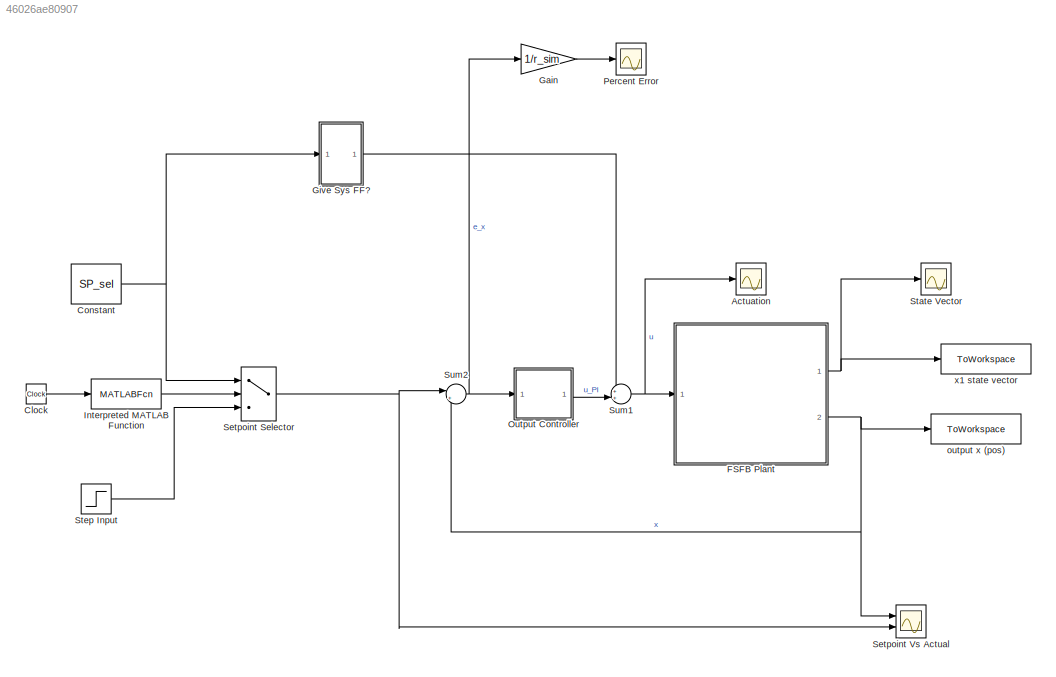
MODEL slx_46026ae80907
KIND model
CONFIG AbsTol = auto
CONFIG EnableMultiTasking = off
CONFIG FixedStep = auto
CONFIG MaxStep = auto
CONFIG MinStep = auto
CONFIG RelTol = 1e-3
CONFIG SampleTimeConstraint = Unconstrained
CONFIG SolverName = VariableStepAuto
CONFIG StartTime = 0.0
CONFIG StopTime = t_sim
BLOCK [Scope] Actuation
  Floating = off
  NumInputPorts = 1
  Ports = [1]
  ScopeSpecificationString = Simulink.scopes.TimeScopeBlockCfg('CurrentConfiguration', extmgr.ConfigurationSet(extmgr.Configuration('Core','General UI',true),extmgr.Configuration('Core','Source UI',true),extmgr.Configuration('Sources','WiredSimulink',true),extmgr.Configuration('Visuals','Time Domain',true,'SerializedDisplays',{struct('MinYLimReal','-5303321014852161474422123516728042070513849380818668761239330306991849472.000...<+2084ch>
BLOCK [Clock] Clock
BLOCK [Constant] Constant
  Value = SP_sel
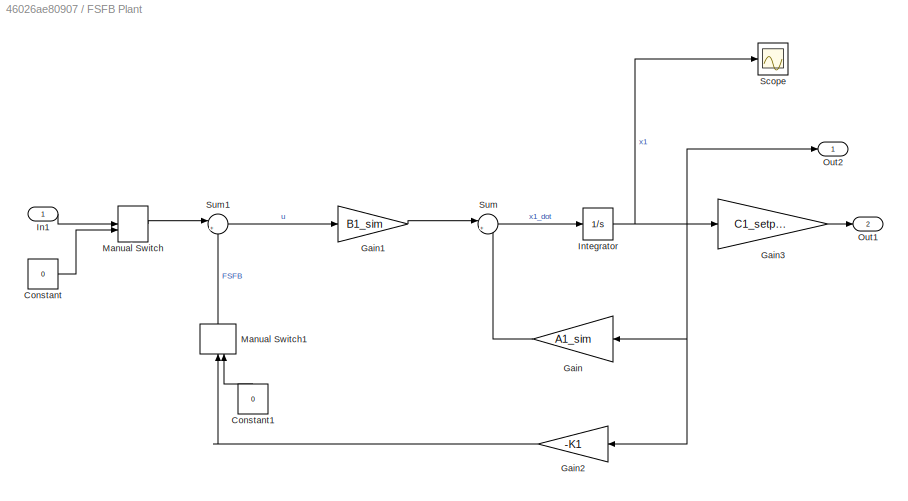
BLOCK [SubSystem] FSFB Plant
  Ports = [1, 2]
  RequestExecContextInheritance = off
BLOCK [Constant] FSFB Plant/Constant
  Value = 0
BLOCK [Constant] FSFB Plant/Constant1
  NameLocation = right
  Value = 0
BLOCK [Gain] FSFB Plant/Gain
  Gain = A1_sim
  Multiplication = Matrix(K*u)
  NameLocation = top
BLOCK [Gain] FSFB Plant/Gain1
  Gain = B1_sim
  Multiplication = Matrix(K*u)
BLOCK [Gain] FSFB Plant/Gain2
  Gain = -K1
  Multiplication = Matrix(K*u)
  NameLocation = top
BLOCK [Gain] FSFB Plant/Gain3
  Gain = C1_setp_ctrl
  Multiplication = Matrix(K*u)
BLOCK [Inport] FSFB Plant/In1
BLOCK [Integrator] FSFB Plant/Integrator
  InitialCondition = x1_0
  Ports = [1, 1]
BLOCK [ManualSwitch] FSFB Plant/Manual Switch
BLOCK [ManualSwitch] FSFB Plant/Manual Switch1
  NameLocation = right
BLOCK [Outport] FSFB Plant/Out1
  Port = 2
BLOCK [Outport] FSFB Plant/Out2
BLOCK [Scope] FSFB Plant/Scope
  Floating = off
  NumInputPorts = 1
  Ports = [1]
  ScopeSpecificationString = Simulink.scopes.TimeScopeBlockCfg('CurrentConfiguration', extmgr.ConfigurationSet(extmgr.Configuration('Core','General UI',true),extmgr.Configuration('Core','Source UI',true),extmgr.Configuration('Sources','WiredSimulink',true,'DataLoggingVariableName','ScopeData4'),extmgr.Configuration('Visuals','Time Domain',true,'SerializedDisplays',{struct('MinYLimReal','-99.35489','MaxYLimReal','123.87514','Y...<+1468ch>
BLOCK [Sum] FSFB Plant/Sum
  Inputs = |++
  Ports = [2, 1]
BLOCK [Sum] FSFB Plant/Sum1
  Inputs = |++
  Ports = [2, 1]
BLOCK [Gain] Gain
  Gain = 1/r_sim
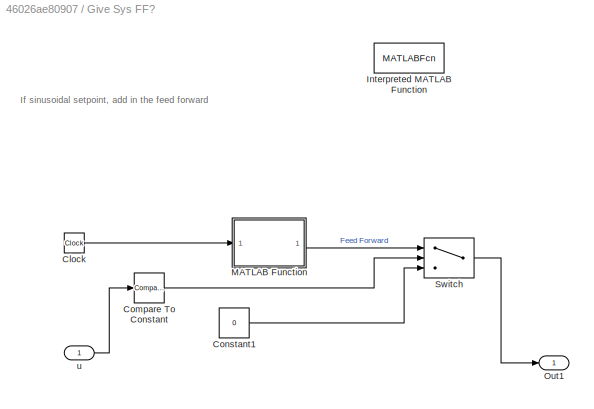
BLOCK [SubSystem] Give Sys FF?
  Ports = [1, 1]
  RequestExecContextInheritance = off
BLOCK [Clock] Give Sys FF?/Clock
BLOCK [Reference] Give Sys FF?/Compare To Constant  REF=simulink/Logic and Bit
Operations/Compare
To Constant
  Ports = [1, 1]
  SourceBlock = simulink/Logic and Bit\nOperations/Compare\nTo Constant
  SourceProductBaseCode = SL
  SourceType = Compare To Constant
BLOCK [Constant] Give Sys FF?/Constant1
  Value = 0
BLOCK [MATLABFcn] Give Sys FF?/Interpreted MATLAB Function
  Commented = on
  MATLABFcn = FF_act_handle(u)
  Ports = [1, 1]
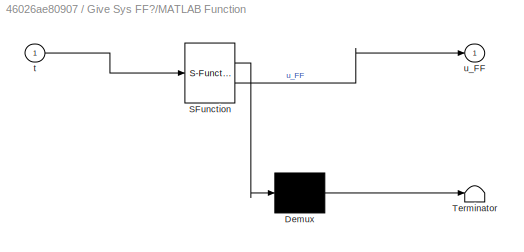
BLOCK [SubSystem] Give Sys FF?/MATLAB Function
  ErrorFcn = Stateflow.Translate.translate
  PermitHierarchicalResolution = ExplicitOnly
  Ports = [1, 1]
  RequestExecContextInheritance = off
  SFBlockType = MATLAB Function
  TreatAsAtomicUnit = on
BLOCK [Demux] Give Sys FF?/MATLAB Function/ Demux 
  Outputs = 1
  Ports = [1, 1]
BLOCK [S-Function] Give Sys FF?/MATLAB Function/ SFunction 
  EnableBusSupport = on
  FunctionName = sf_sfun
  PortCounts = [1 2]
  Ports = [1, 2]
  SFcnIsStateOwnerBlock = off
  SFunctionDeploymentMode = off
  Tag = Stateflow S-Function 2
BLOCK [Terminator] Give Sys FF?/MATLAB Function/ Terminator 
BLOCK [Inport] Give Sys FF?/MATLAB Function/t
BLOCK [Outport] Give Sys FF?/MATLAB Function/u_FF
BLOCK [Outport] Give Sys FF?/Out1
BLOCK [Switch] Give Sys FF?/Switch
  Criteria = u2 > Threshold
  InputSameDT = off
  SaturateOnIntegerOverflow = off
BLOCK [Inport] Give Sys FF?/u
BLOCK [MATLABFcn] Interpreted MATLAB Function
  MATLABFcn = des_traj_handle(u)
  Ports = [1, 1]
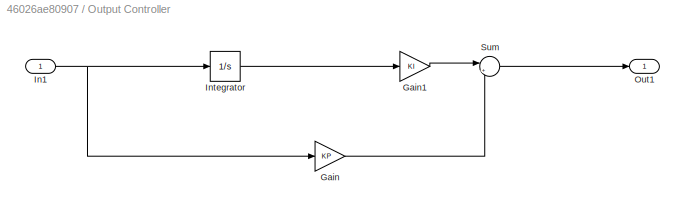
BLOCK [SubSystem] Output Controller
  Ports = [1, 1]
  RequestExecContextInheritance = off
BLOCK [Gain] Output Controller/Gain
  Gain = KP
BLOCK [Gain] Output Controller/Gain1
  Gain = KI
BLOCK [Inport] Output Controller/In1
BLOCK [Integrator] Output Controller/Integrator
  Ports = [1, 1]
BLOCK [Outport] Output Controller/Out1
BLOCK [Sum] Output Controller/Sum
  Inputs = |++
  Ports = [2, 1]
BLOCK [Scope] Percent Error
  Floating = off
  NumInputPorts = 1
  Ports = [1]
  ScopeSpecificationString = Simulink.scopes.TimeScopeBlockCfg('CurrentConfiguration', extmgr.ConfigurationSet(extmgr.Configuration('Core','General UI',true),extmgr.Configuration('Core','Source UI',true),extmgr.Configuration('Sources','WiredSimulink',true,'DataLoggingVariableName','ScopeData5'),extmgr.Configuration('Visuals','Time Domain',true,'SerializedDisplays',{struct('MinYLimReal','-12318307725451597029599922874672910159...<+3136ch>
BLOCK [MultiPortSwitch] Setpoint Selector
  InputSameDT = off
  Inputs = 2
  Ports = [3, 1]
  SaturateOnIntegerOverflow = off
BLOCK [Scope] Setpoint Vs Actual
  Floating = off
  NumInputPorts = 2
  Ports = [2]
  ScopeSpecificationString = Simulink.scopes.TimeScopeBlockCfg('CurrentConfiguration', extmgr.ConfigurationSet(extmgr.Configuration('Core','General UI',true),extmgr.Configuration('Core','Source UI',true),extmgr.Configuration('Sources','WiredSimulink',true,'DataLoggingVariableName','ScopeData1'),extmgr.Configuration('Visuals','Time Domain',true,'SerializedDisplays',{struct('MinYLimReal','-69.38746','MaxYLimReal','119.90915','Y...<+1582ch>
BLOCK [Scope] State Vector
  Floating = off
  NumInputPorts = 1
  Ports = [1]
  ScopeSpecificationString = Simulink.scopes.TimeScopeBlockCfg('CurrentConfiguration', extmgr.ConfigurationSet(extmgr.Configuration('Core','General UI',true),extmgr.Configuration('Core','Source UI',true),extmgr.Configuration('Sources','WiredSimulink',true,'DataLoggingVariableName','ScopeData3'),extmgr.Configuration('Visuals','Time Domain',true,'SerializedDisplays',{struct('MinYLimReal','-54.30217','MaxYLimReal','54.39159','YL...<+1539ch>
BLOCK [Step] Step Input
  After = r_sim
  SampleTime = 0
BLOCK [Sum] Sum1
  Inputs = ++|
  Ports = [2, 1]
BLOCK [Sum] Sum2
  Inputs = |+-
  Ports = [2, 1]
BLOCK [ToWorkspace] output x (pos)
  FixptAsFi = on
  MaxDataPoints = inf
  Ports = [1]
  SampleTime = -1
  VariableName = y1
BLOCK [ToWorkspace] x1 state vector
  FixptAsFi = on
  MaxDataPoints = inf
  Ports = [1]
  SampleTime = -1
  VariableName = x1
ANNOTATION Give Sys FF?: If sinusoidal setpoint, add in the feed forward
LINE Clock:1 -> Interpreted MATLAB Function:1
NET Constant:1 -> Give Sys FF?:1, Setpoint Selector:1
LINE FSFB Plant/Constant1:1 -> FSFB Plant/Manual Switch1:2
LINE FSFB Plant/Constant:1 -> FSFB Plant/Manual Switch:2
LINE FSFB Plant/Gain1:1 -> FSFB Plant/Sum:1
LINE FSFB Plant/Gain2:1 -> FSFB Plant/Manual Switch1:1
LINE FSFB Plant/Gain3:1 -> FSFB Plant/Out1:1
LINE FSFB Plant/Gain:1 -> FSFB Plant/Sum:2
LINE FSFB Plant/In1:1 -> FSFB Plant/Manual Switch:1
NET FSFB Plant/Integrator:1 -> FSFB Plant/Gain2:1, FSFB Plant/Gain3:1, FSFB Plant/Gain:1, FSFB Plant/Out2:1, FSFB Plant/Scope:1
LINE FSFB Plant/Manual Switch1:1 -> FSFB Plant/Sum1:2
LINE FSFB Plant/Manual Switch:1 -> FSFB Plant/Sum1:1
LINE FSFB Plant/Sum1:1 -> FSFB Plant/Gain1:1
LINE FSFB Plant/Sum:1 -> FSFB Plant/Integrator:1
NET FSFB Plant:1 -> State Vector:1, x1 state vector:1
NET FSFB Plant:2 -> Setpoint Vs Actual:1, Sum2:2, output x (pos):1
LINE Gain:1 -> Percent Error:1
LINE Give Sys FF?/Clock:1 -> Give Sys FF?/MATLAB Function:1
LINE Give Sys FF?/Compare To Constant:1 -> Give Sys FF?/Switch:2
LINE Give Sys FF?/Constant1:1 -> Give Sys FF?/Switch:3
LINE Give Sys FF?/MATLAB Function:1 -> Give Sys FF?/Switch:1
LINE Give Sys FF?/Switch:1 -> Give Sys FF?/Out1:1
LINE Give Sys FF?/u:1 -> Give Sys FF?/Compare To Constant:1
LINE Give Sys FF?:1 -> Sum1:1
LINE Interpreted MATLAB Function:1 -> Setpoint Selector:2
LINE Output Controller/Gain1:1 -> Output Controller/Sum:1
LINE Output Controller/Gain:1 -> Output Controller/Sum:2
NET Output Controller/In1:1 -> Output Controller/Gain:1, Output Controller/Integrator:1
LINE Output Controller/Integrator:1 -> Output Controller/Gain1:1
LINE Output Controller/Sum:1 -> Output Controller/Out1:1
LINE Output Controller:1 -> Sum1:2
NET Setpoint Selector:1 -> Setpoint Vs Actual:2, Sum2:1
LINE Step Input:1 -> Setpoint Selector:3
NET Sum1:1 -> Actuation:1, FSFB Plant:1
NET Sum2:1 -> Gain:1, Output Controller:1
note: NET lines group one-source signal fan-out (src -> all destinations, sorted); 1:1 wires keep LINE
CHART Give Sys FF?/MATLAB Function states=1 transitions=1
  STATE_LABEL 'eML_blk_kernel()'
  STATE_LABEL 'SCRIPT:\nfunction u_FF = fcn(t)\n\nu_FF = cos(t./4.0).*9.787113714149716e-1+sin(t./4.0).*3.700539911107918-...\n    cosh(2.977146284615521e+2.*7.687987759523578e+7.*t.*5.379844734561511e-10).*...\n    3.407512593157144-exp(t.*-2.0).*(cos(t./4.0)+sin(t./4.0).*1.678138930946272)....\n    *1.097280108322348e-1-2.977146284615521e+2.*7.687987759523578e+7.*...\n    sinh(2.977146284615521e+2.*7.687987759523578e...<+64ch>'
CHART  states=0 transitions=0
